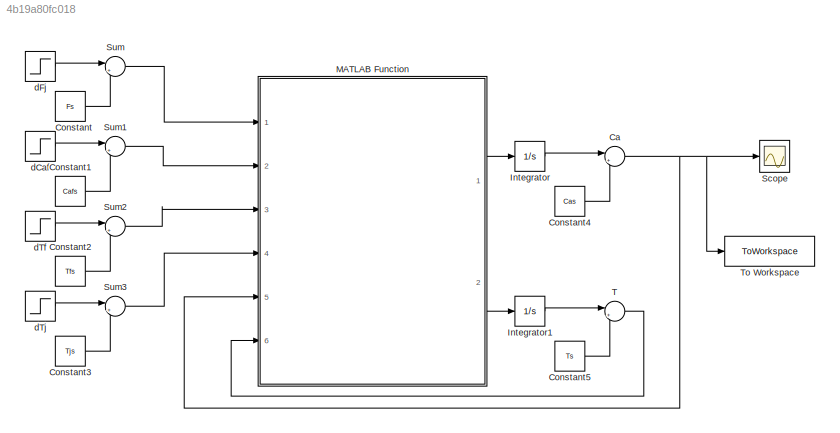
MODEL slx_4b19a80fc018
KIND model
CONFIG AbsTol = auto
CONFIG EnableMultiTasking = off
CONFIG FixedStep = 0.01
CONFIG MaxStep = auto
CONFIG MinStep = auto
CONFIG RelTol = 1e-3
CONFIG SampleTimeConstraint = Unconstrained
CONFIG SolverName = FixedStepAuto
CONFIG StartTime = 0.0
CONFIG StopTime = 15
BLOCK [Sum]               Ca
  Inputs = |++
  NameLocation = top
  Ports = [2, 1]
BLOCK [Sum]             T
  Inputs = |++
  NameLocation = top
  Ports = [2, 1]
BLOCK [Constant] Constant
  Value = Fs
BLOCK [Constant] Constant1
  Value = Cafs
BLOCK [Constant] Constant2
  Value = Tfs
BLOCK [Constant] Constant3
  Value = Tjs
BLOCK [Constant] Constant4
  Value = Cas
BLOCK [Constant] Constant5
  Value = Ts
BLOCK [Integrator] Integrator
  Ports = [1, 1]
BLOCK [Integrator] Integrator1
  Ports = [1, 1]
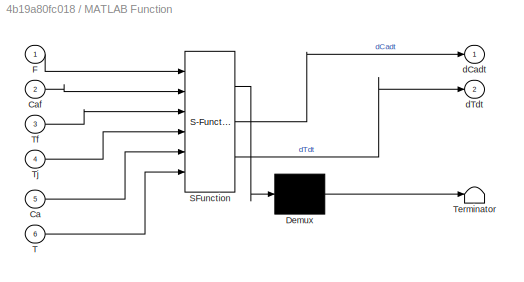
BLOCK [SubSystem] MATLAB Function
  ErrorFcn = Stateflow.Translate.translate
  PermitHierarchicalResolution = ExplicitOnly
  Ports = [6, 2]
  RequestExecContextInheritance = off
  SFBlockType = MATLAB Function
  TreatAsAtomicUnit = on
BLOCK [Demux] MATLAB Function/ Demux 
  Outputs = 1
  Ports = [1, 1]
BLOCK [S-Function] MATLAB Function/ SFunction 
  EnableBusSupport = on
  FunctionName = sf_sfun
  PortCounts = [6 3]
  Ports = [6, 3]
  SFcnIsStateOwnerBlock = off
  SFunctionDeploymentMode = off
  Tag = Stateflow S-Function 2
BLOCK [Terminator] MATLAB Function/ Terminator 
BLOCK [Inport] MATLAB Function/Ca
  Port = 5
BLOCK [Inport] MATLAB Function/Caf
  Port = 2
BLOCK [Inport] MATLAB Function/F
BLOCK [Inport] MATLAB Function/T
  Port = 6
BLOCK [Inport] MATLAB Function/Tf
  Port = 3
BLOCK [Inport] MATLAB Function/Tj
  Port = 4
BLOCK [Outport] MATLAB Function/dCadt
BLOCK [Outport] MATLAB Function/dTdt
  Port = 2
BLOCK [Scope] Scope
  Floating = off
  NumInputPorts = 1
  Ports = [1]
  ScopeSpecificationString = Simulink.scopes.TimeScopeBlockCfg('CurrentConfiguration', extmgr.ConfigurationSet(extmgr.Configuration('Core','General UI',true,'FigureColor',[1 1 1]),extmgr.Configuration('Core','Source UI',true),extmgr.Configuration('Sources','WiredSimulink',true),extmgr.Configuration('Visuals','Time Domain',true,'SerializedDisplays',{struct('MinYLimReal','8.56008','MaxYLimReal','8.59928','YLabelReal','','MinYLi...<+1617ch>
BLOCK [Sum] Sum
  Inputs = |++
  Ports = [2, 1]
BLOCK [Sum] Sum1
  Inputs = |++
  Ports = [2, 1]
BLOCK [Sum] Sum2
  Inputs = |++
  Ports = [2, 1]
BLOCK [Sum] Sum3
  Inputs = |++
  Ports = [2, 1]
BLOCK [ToWorkspace] To Workspace
  FixptAsFi = on
  MaxDataPoints = inf
  Ports = [1]
  SampleTime = -1
  SaveFormat = Timeseries
  VariableName = CaNL
BLOCK [Step] dCaf
  After = 0
  SampleTime = 0
  Time = 0
BLOCK [Step] dFj
  After = 0.01
  SampleTime = 0
  Time = 0
BLOCK [Step] dTf
  After = 0
  SampleTime = 0
  Time = 0
BLOCK [Step] dTj
  After = 0
  SampleTime = 0
  Time = 0
NET               Ca:1 -> MATLAB Function:5, Scope:1, To Workspace:1
LINE             T:1 -> MATLAB Function:6
LINE Constant1:1 -> Sum1:2
LINE Constant2:1 -> Sum2:2
LINE Constant3:1 -> Sum3:2
LINE Constant4:1 ->               Ca:2
LINE Constant5:1 ->             T:2
LINE Constant:1 -> Sum:2
LINE Integrator1:1 ->             T:1
LINE Integrator:1 ->               Ca:1
LINE MATLAB Function:1 -> Integrator:1
LINE MATLAB Function:2 -> Integrator1:1
LINE Sum1:1 -> MATLAB Function:2
LINE Sum2:1 -> MATLAB Function:3
LINE Sum3:1 -> MATLAB Function:4
LINE Sum:1 -> MATLAB Function:1
LINE dCaf:1 -> Sum1:1
LINE dFj:1 -> Sum:1
LINE dTf:1 -> Sum2:1
LINE dTj:1 -> Sum3:1
note: NET lines group one-source signal fan-out (src -> all destinations, sorted); 1:1 wires keep LINE
CHART MATLAB Function states=1 transitions=1
  STATE_LABEL 'eML_blk_kernel()'
  STATE_LABEL 'SCRIPT:\nfunction [dCadt, dTdt] = fcn(F, Caf, Tf, Tj, Ca, T)\n% Definição dos parâmetros do reator\nV     = 1;         % Volume do reator (m^3)\ndE    = 11843;     % Energia de ativação (J/mol)\nrhocp = 500;       % Densidade*Capacidade térmica (J/(K*m^3))\nR     = 1.987;     % Constante de gás ideal (L/(mol*K))\nUA    = 150;       % Coef. geral transf. calor*área para troca de calor (J/(Kh))\nk0    = 970...<+208ch>'
CHART  states=0 transitions=0
